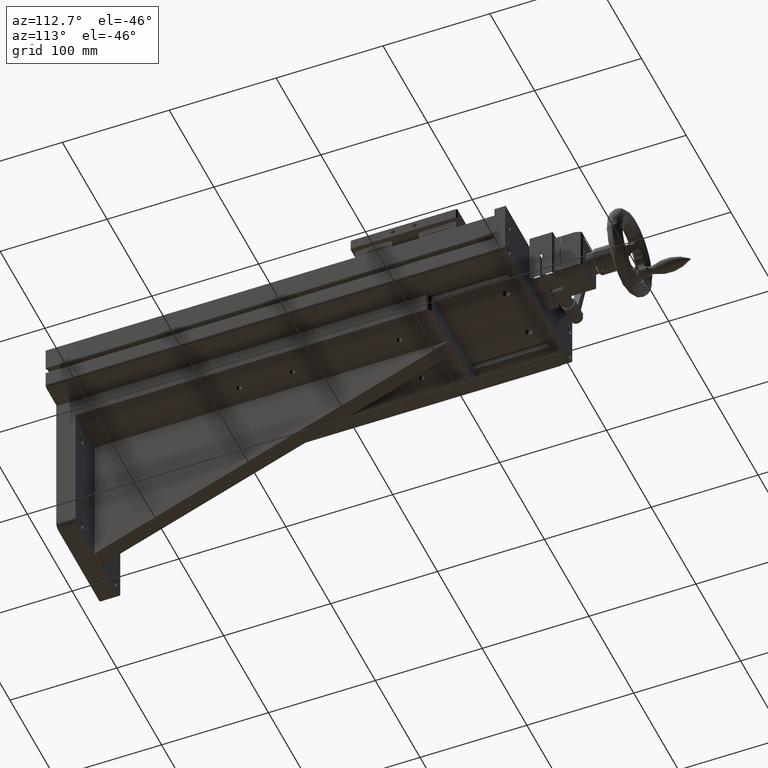
[diagram: clean part render]
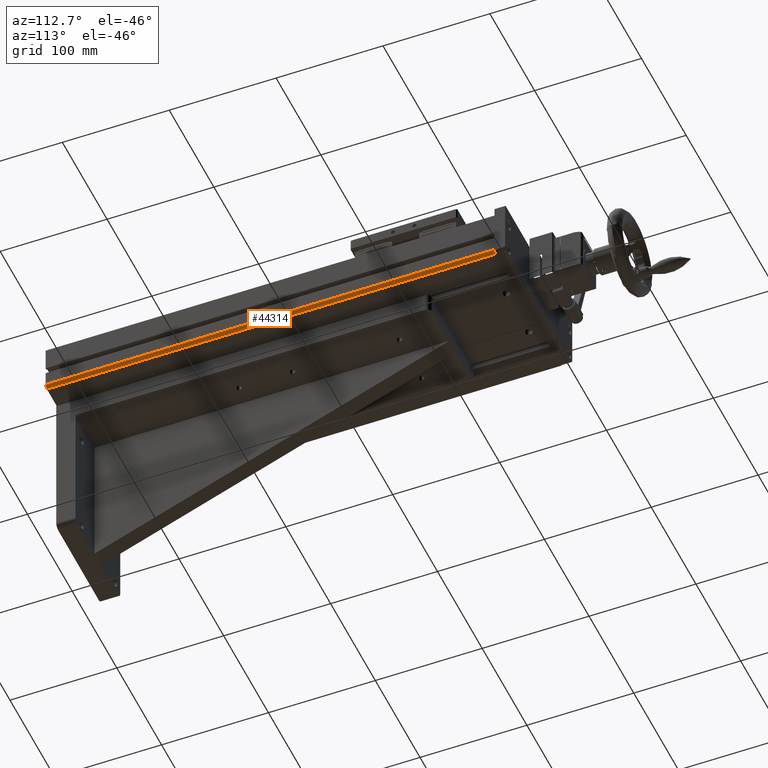
[diagram: same view with one face highlighted and labeled with its STEP entity id]
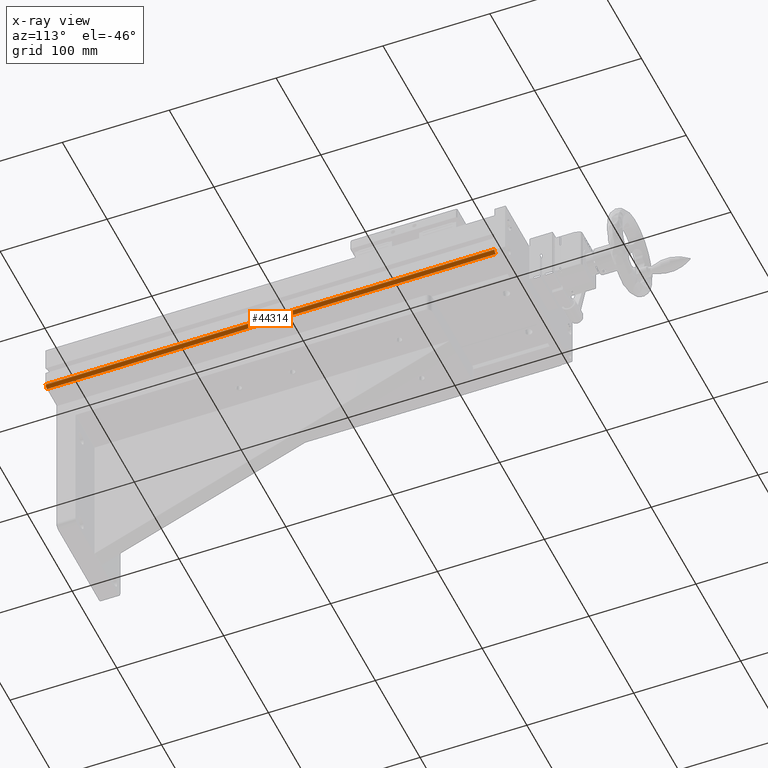
[diagram: x-ray of the same camera — body ghosted, the highlighted face saturated]
A machine part, auxiliary view. The second image highlights one B-rep face of the part: STEP entity #44314.
The next image is the same camera in x-ray: the body ghosted, the highlighted face saturated — about 0% of this face is hidden behind the body in this view.
In plain terms, the highlighted cylindrical surface (edge-blend (fillet) strip) has radius 3 mm, axis along (0, -1, 0).
Its self-contained STEP definition (entity closure, byte-faithful):
#1459 = LINE ( 'NONE', #5727, #36512 ) ;
#3094 = EDGE_CURVE ( 'NONE', #14135, #28543, #18072, .T. ) ;
#3204 = CARTESIAN_POINT ( 'NONE',  ( -10.18535181246049603, 234.0134646088877162, 74.99999999999928946 ) ) ;
#3212 = VERTEX_POINT ( 'NONE', #24356 ) ;
#5355 = EDGE_CURVE ( 'NONE', #16314, #3212, #1459, .T. ) ;
#5727 = CARTESIAN_POINT ( 'NONE',  ( -7.185351812460439191, 234.0134646088877162, 77.99999999999940314 ) ) ;
#6354 = CARTESIAN_POINT ( 'NONE',  ( -10.18535181246049603, 234.0134646088877162, 74.99999999999928946 ) ) ;
#8780 = AXIS2_PLACEMENT_3D ( 'NONE', #15584, #27213, #42547 ) ;
#9561 = EDGE_CURVE ( 'NONE', #28543, #3212, #37809, .T. ) ;
#10786 = DIRECTION ( 'NONE',  ( 2.355720492930367857E-16, -1.000000000000000000, 2.223285094848859850E-16 ) ) ;
#12853 = CARTESIAN_POINT ( 'NONE',  ( -10.18535181246033083, -185.9865353911120849, 77.99999999999940314 ) ) ;
#13313 = EDGE_CURVE ( 'NONE', #14135, #16314, #44141, .T. ) ;
#13557 = DIRECTION ( 'NONE',  ( 2.355720492930367857E-16, -1.000000000000000000, 2.223285094848859850E-16 ) ) ;
#13703 = DIRECTION ( 'NONE',  ( 1.040834085586064062E-14, 0.000000000000000000, 1.000000000000000000 ) ) ;
#14135 = VERTEX_POINT ( 'NONE', #6354 ) ;
#15584 = CARTESIAN_POINT ( 'NONE',  ( -10.18535181246044097, 234.0134646088877162, 77.99999999999940314 ) ) ;
#16207 = ORIENTED_EDGE ( 'NONE', *, *, #5355, .T. ) ;
#16314 = VERTEX_POINT ( 'NONE', #28107 ) ;
#16747 = CYLINDRICAL_SURFACE ( 'NONE', #41697, 3.000000000000058176 ) ;
#18072 = LINE ( 'NONE', #3204, #29294 ) ;
#18753 = CARTESIAN_POINT ( 'NONE',  ( -10.18535181246038590, -185.9865353911120849, 74.99999999999928946 ) ) ;
#24356 = CARTESIAN_POINT ( 'NONE',  ( -7.185351812460327281, -185.9865353911120849, 77.99999999999940314 ) ) ;
#27213 = DIRECTION ( 'NONE',  ( 2.355720492930367857E-16, -1.000000000000000000, 2.223285094848859850E-16 ) ) ;
#28107 = CARTESIAN_POINT ( 'NONE',  ( -7.185351812460439191, 234.0134646088877162, 77.99999999999940314 ) ) ;
#28229 = DIRECTION ( 'NONE',  ( 2.355720492930367857E-16, -1.000000000000000000, 2.223285094848859850E-16 ) ) ;
#28543 = VERTEX_POINT ( 'NONE', #18753 ) ;
#29294 = VECTOR ( 'NONE', #10786, 1000.000000000000000 ) ;
#33100 = CARTESIAN_POINT ( 'NONE',  ( -10.18535181246044097, 234.0134646088877162, 77.99999999999940314 ) ) ;
#36512 = VECTOR ( 'NONE', #13557, 1000.000000000000000 ) ;
#37809 = CIRCLE ( 'NONE', #38611, 3.000000000000058176 ) ;
#38247 = ORIENTED_EDGE ( 'NONE', *, *, #9561, .F. ) ;
#38611 = AXIS2_PLACEMENT_3D ( 'NONE', #12853, #28229, #43574 ) ;
#41697 = AXIS2_PLACEMENT_3D ( 'NONE', #33100, #48214, #13703 ) ;
#42547 = DIRECTION ( 'NONE',  ( 1.040834085586064062E-14, 0.000000000000000000, 1.000000000000000000 ) ) ;
#43574 = DIRECTION ( 'NONE',  ( 1.040834085586064062E-14, 0.000000000000000000, 1.000000000000000000 ) ) ;
#44141 = CIRCLE ( 'NONE', #8780, 3.000000000000058176 ) ;
#44314 = ADVANCED_FACE ( 'NONE', ( #47717 ), #16747, .T. ) ;
#45416 = ORIENTED_EDGE ( 'NONE', *, *, #3094, .F. ) ;
#46178 = EDGE_LOOP ( 'NONE', ( #38247, #45416, #49323, #16207 ) ) ;
#47717 = FACE_OUTER_BOUND ( 'NONE', #46178, .T. ) ;
#48214 = DIRECTION ( 'NONE',  ( 2.355720492930367857E-16, -1.000000000000000000, 2.223285094848859850E-16 ) ) ;
#49323 = ORIENTED_EDGE ( 'NONE', *, *, #13313, .T. ) ;